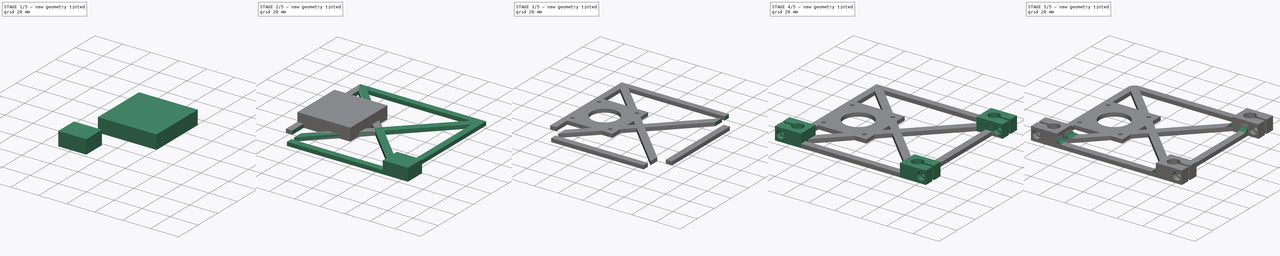
[diagram: build sequence overview — one tinted view per stage of 5, left to right]
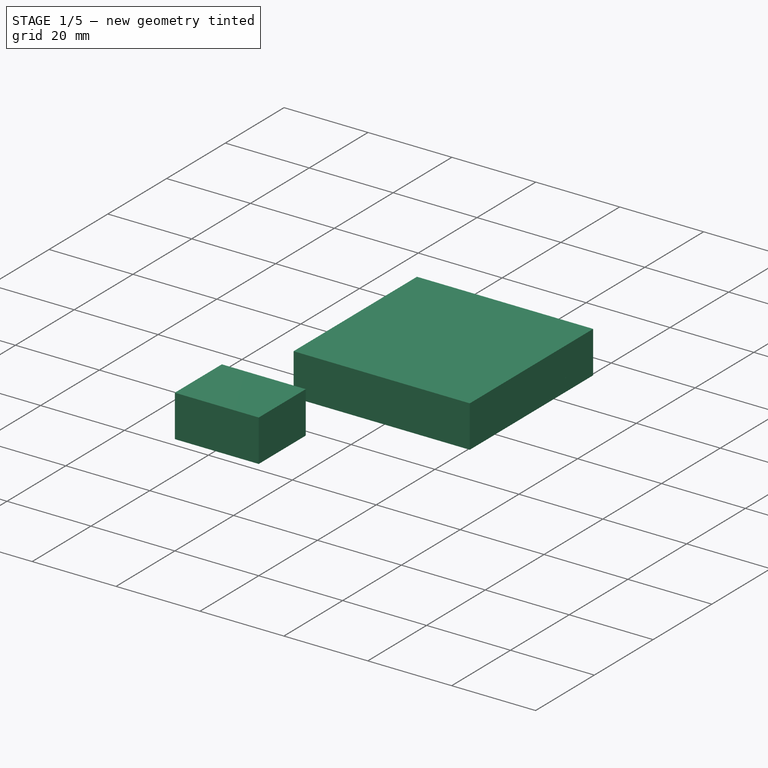
[diagram: stage 1 of 5 — iso view after this stage's code; geometry added in this stage tinted green]
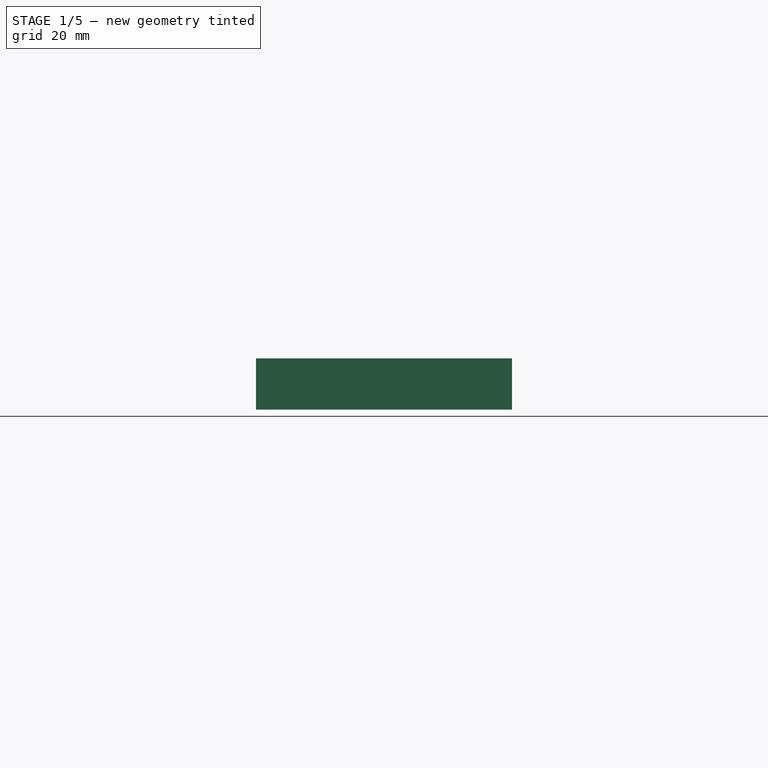
[diagram: stage 1 of 5 — front view after this stage's code; geometry added in this stage tinted green]
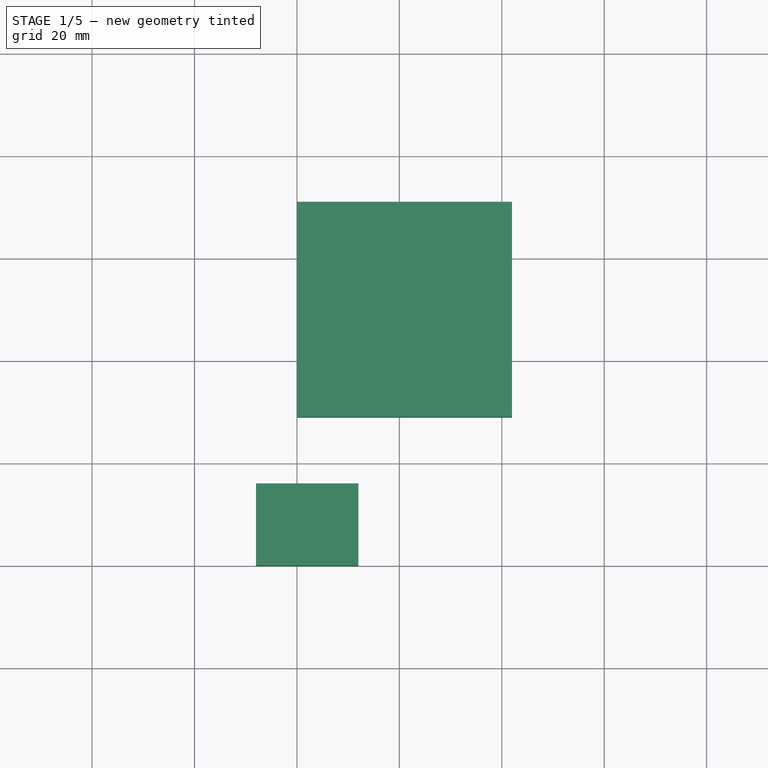
[diagram: stage 1 of 5 — top view after this stage's code; geometry added in this stage tinted green]
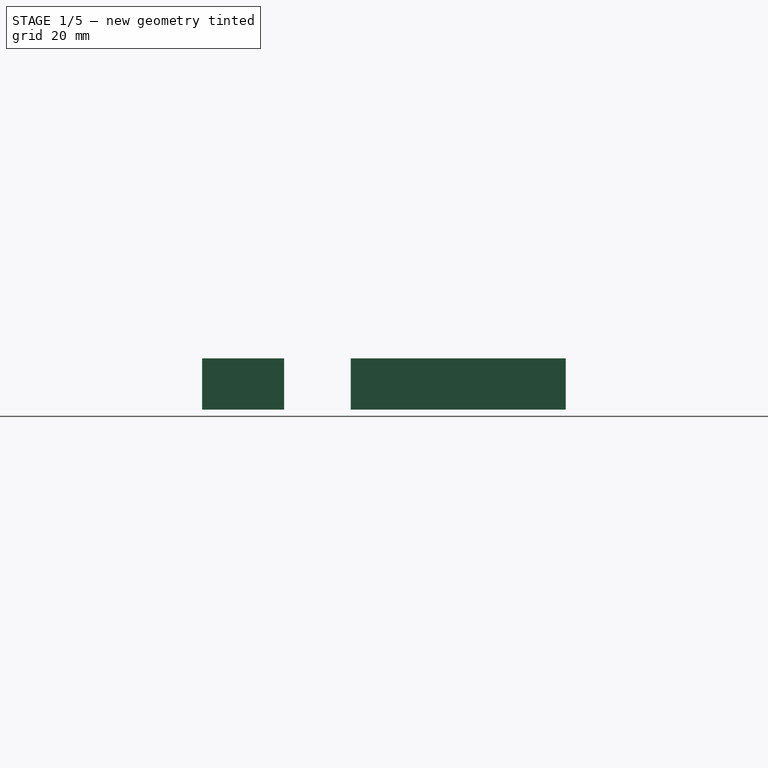
[diagram: stage 1 of 5 — right view after this stage's code; geometry added in this stage tinted green]
FCSTD DOCUMENT
Label: EndPlate3
objects: PartDesign::Pad×6, Sketcher::SketchObject×5, Part::Cut×4, PartDesign::Pocket×3, Part::Fillet×2, Part::MultiFuse×1
note: 27 computed .brp shape members not serialized (recipe doc carries the construction recipe); baked Part::Feature solids carry a one-line shape summary decoded from their .brp

FEATURE [Sketcher::SketchObject] Sketch001
  sketch-geometry (4):
    g0: LineSegment StartX=-8 StartY=0 StartZ=0 EndX=12 EndY=0 EndZ=0
    g1: LineSegment StartX=12 StartY=0 StartZ=0 EndX=12 EndY=16 EndZ=0
    g2: LineSegment StartX=12 StartY=16 StartZ=0 EndX=-8 EndY=16 EndZ=0
    g3: LineSegment StartX=-8 StartY=16 StartZ=0 EndX=-8 EndY=0 EndZ=0
  constraints (12):
    c: Coincident(g0,g1)
    c: Coincident(g1,g2)
    c: Coincident(g2,g3)
    c: Coincident(g3,g0)
    c: Horizontal(g0)
    c: Horizontal(g2)
    c: Vertical(g1)
    c: Vertical(g3)
    c: Distance(g2) = 20
    c: Distance(g1) = 16
    c: DistanceX(g0) = -8
    c: DistanceY(g0) = 0
FEATURE [PartDesign::Pad] Pad001
  Length = 10
  MirroredExtent = false
  Sketch = -> Sketch001
FEATURE [Sketcher::SketchObject] Sketch004
  sketch-geometry (5):
    g0: LineSegment StartX=0 StartY=71 StartZ=0 EndX=42 EndY=71 EndZ=0
    g1: LineSegment StartX=42 StartY=71 StartZ=0 EndX=42 EndY=29 EndZ=0
    g2: LineSegment StartX=0 StartY=29 StartZ=0 EndX=0 EndY=71 EndZ=0
    g3: LineSegment StartX=0 StartY=29 StartZ=0 EndX=21 EndY=29 EndZ=0
    g4: LineSegment StartX=21 StartY=29 StartZ=0 EndX=42 EndY=29 EndZ=0
  constraints (15):
    c: Coincident(g0,g1)
    c: Coincident(g2,g0)
    c: Horizontal(g0)
    c: Vertical(g1)
    c: Vertical(g2)
    c: Horizontal(g3)
    c: Coincident(g3,g4)
    c: Horizontal(g4)
    c: Equal(g4,g3)
    c: Coincident(g1,g4)
    c: Coincident(g3,g2)
    c: Equal(g0,g1)
    c: DistanceX(g0) = 42
    c: DistanceX(g3) = 21
    c: DistanceY(g3) = 29
FEATURE [PartDesign::Pad] Pad004
  Length = 10
  MirroredExtent = false
  Sketch = -> Sketch004
FEATURE [PartDesign::Pad] Pad005
  Length = 3
  MirroredExtent = false
  Placement = pos=(21,50,0) rot=(0,0,1;0rad)
  Sketch = -> Sketch
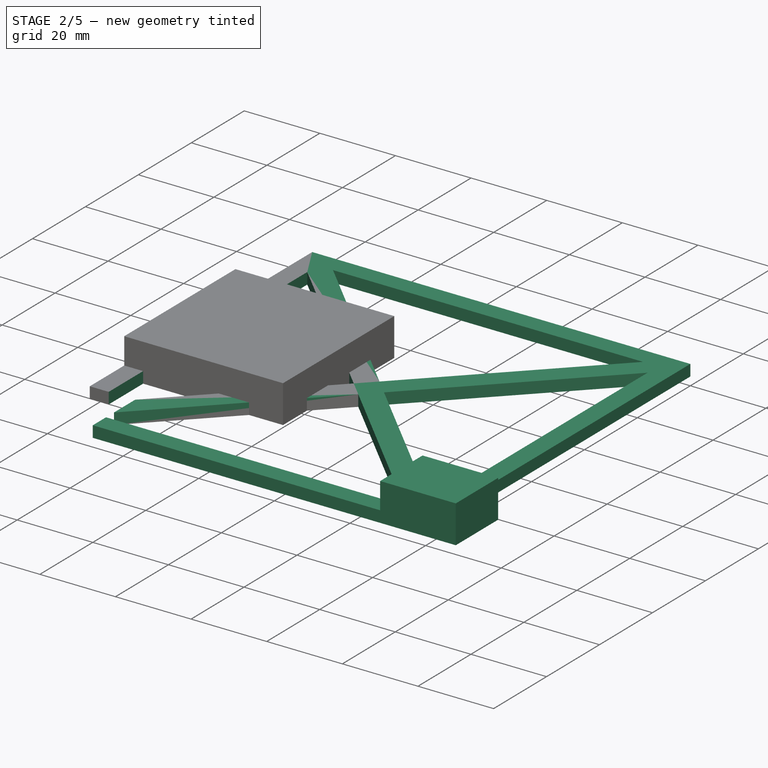
[diagram: stage 2 of 5 — iso view after this stage's code; geometry added in this stage tinted green]
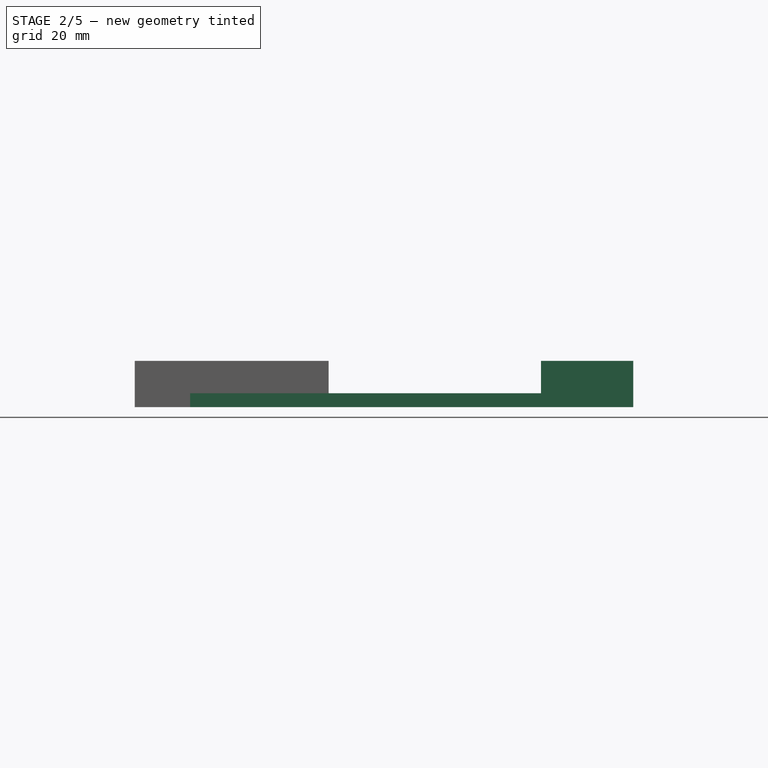
[diagram: stage 2 of 5 — front view after this stage's code; geometry added in this stage tinted green]
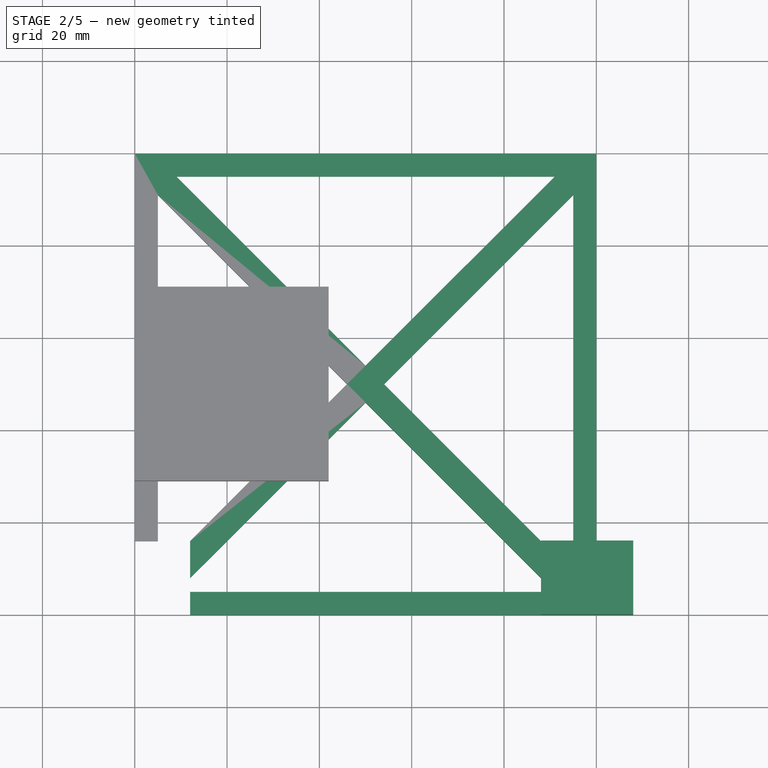
[diagram: stage 2 of 5 — top view after this stage's code; geometry added in this stage tinted green]
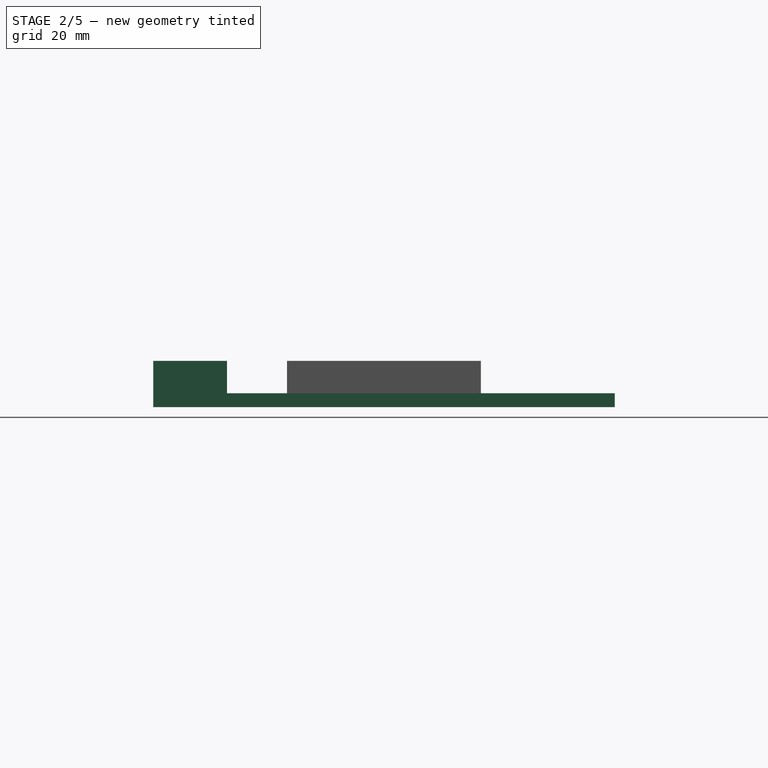
[diagram: stage 2 of 5 — right view after this stage's code; geometry added in this stage tinted green]
FEATURE [Sketcher::SketchObject] Sketch
  sketch-geometry (16):
    g0: LineSegment StartX=0 StartY=0 StartZ=0 EndX=0 EndY=100 EndZ=0
    g1: LineSegment StartX=0 StartY=100 StartZ=0 EndX=100 EndY=100 EndZ=0
    g2: LineSegment StartX=100 StartY=100 StartZ=0 EndX=100 EndY=0 EndZ=0
    g3: LineSegment StartX=100 StartY=0 StartZ=0 EndX=0 EndY=0 EndZ=0
    g4: LineSegment StartX=5 StartY=91 StartZ=0 EndX=46 EndY=50 EndZ=0
    g5: LineSegment StartX=46 StartY=50 StartZ=0 EndX=5 EndY=9 EndZ=0
    g6: LineSegment StartX=5 StartY=9 StartZ=0 EndX=5 EndY=91 EndZ=0
    g7: LineSegment StartX=9 StartY=95 StartZ=0 EndX=50 EndY=54 EndZ=0
    g8: LineSegment StartX=50 StartY=54 StartZ=0 EndX=91 EndY=95 EndZ=0
    g9: LineSegment StartX=91 StartY=95 StartZ=0 EndX=9 EndY=95 EndZ=0
    g10: LineSegment StartX=95 StartY=91 StartZ=0 EndX=95 EndY=9 EndZ=0
    g11: LineSegment StartX=95 StartY=9 StartZ=0 EndX=54 EndY=50 EndZ=0
    g12: LineSegment StartX=54 StartY=50 StartZ=0 EndX=95 EndY=91 EndZ=0
    g13: LineSegment StartX=91 StartY=5 StartZ=0 EndX=50 EndY=46 EndZ=0
    g14: LineSegment StartX=50 StartY=46 StartZ=0 EndX=9 EndY=5 EndZ=0
    g15: LineSegment StartX=9 StartY=5 StartZ=0 EndX=91 EndY=5 EndZ=0
  constraints (48):
    c: Vertical(g0)
    c: Coincident(g0,g1)
    c: Horizontal(g1)
    c: Coincident(g1,g2)
    c: Vertical(g2)
    c: Coincident(g2,g3)
    c: Horizontal(g3)
    c: Coincident(g3,g0)
    c: DistanceX(g0) = 0
    c: DistanceY(g0) = 0
    c: DistanceY(g0) = 100
    c: DistanceX(g3) = -100
    c: Coincident(g4,g5)
    c: Coincident(g5,g6)
    c: Vertical(g6)
    c: Coincident(g6,g4)
    c: Equal(g4,g5)
    c: DistanceX(g0,g5) = 5
    c: Coincident(g7,g8)
    c: Coincident(g8,g9)
    c: Coincident(g9,g7)
    c: Horizontal(g9)
    c: DistanceY(g7,g0) = 5
    c: Equal(g7,g8)
    c: Vertical(g10)
    c: Coincident(g10,g11)
    c: Coincident(g11,g12)
    c: Coincident(g12,g10)
    c: DistanceX(g10,g1) = 5
    c: Coincident(g13,g14)
    c: Coincident(g14,g15)
    c: Horizontal(g15)
    c: Equal(g12,g11)
    c: Equal(g14,g13)
    c: Coincident(g13,g15)
    c: DistanceY(g13,g2) = -5
    c: Equal(g6,g9)
    c: Equal(g9,g10)
    c: Equal(g10,g15)
    c: Equal(g8,g12)
    c: Equal(g11,g13)
    c: Equal(g7,g4)
    c: Parallel(g13,g11)
    c: DistanceY(g4) = 50
    c: DistanceY(g11) = 50
    c: DistanceX(g7) = 50
    c: DistanceX(g13) = 50
    c: Distance(g6) = 82
FEATURE [PartDesign::Pad] Pad
  Length = 3
  MirroredExtent = false
  Sketch = -> Sketch
FEATURE [Sketcher::SketchObject] Sketch002
  sketch-geometry (4):
    g0: LineSegment StartX=88 StartY=0 StartZ=0 EndX=108 EndY=0 EndZ=0
    g1: LineSegment StartX=108 StartY=0 StartZ=0 EndX=108 EndY=16 EndZ=0
    g2: LineSegment StartX=108 StartY=16 StartZ=0 EndX=88 EndY=16 EndZ=0
    g3: LineSegment StartX=88 StartY=16 StartZ=0 EndX=88 EndY=0 EndZ=0
  constraints (12):
    c: Coincident(g0,g1)
    c: Coincident(g1,g2)
    c: Coincident(g2,g3)
    c: Coincident(g3,g0)
    c: Horizontal(g0)
    c: Horizontal(g2)
    c: Vertical(g1)
    c: Vertical(g3)
    c: Distance(g1) = 16
    c: Distance(g0) = 20
    c: DistanceX(g0) = 108
    c: DistanceY(g0) = 0
FEATURE [PartDesign::Pad] Pad002
  Length = 10
  MirroredExtent = false
  Sketch = -> Sketch002
FEATURE [Part::Cut] Cut
  Base = -> Pad
  Tool = -> Pad001
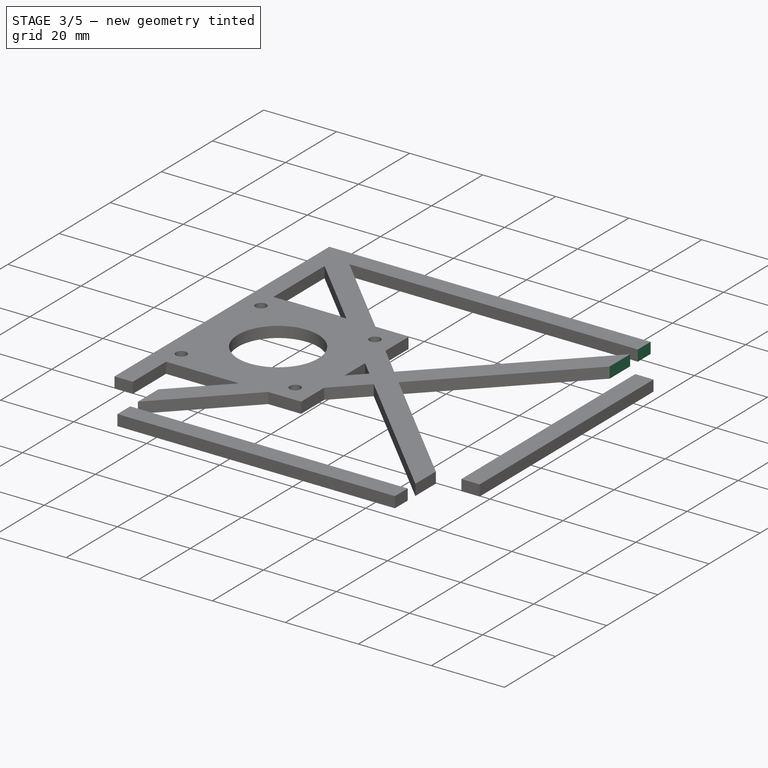
[diagram: stage 3 of 5 — iso view after this stage's code; geometry added in this stage tinted green]
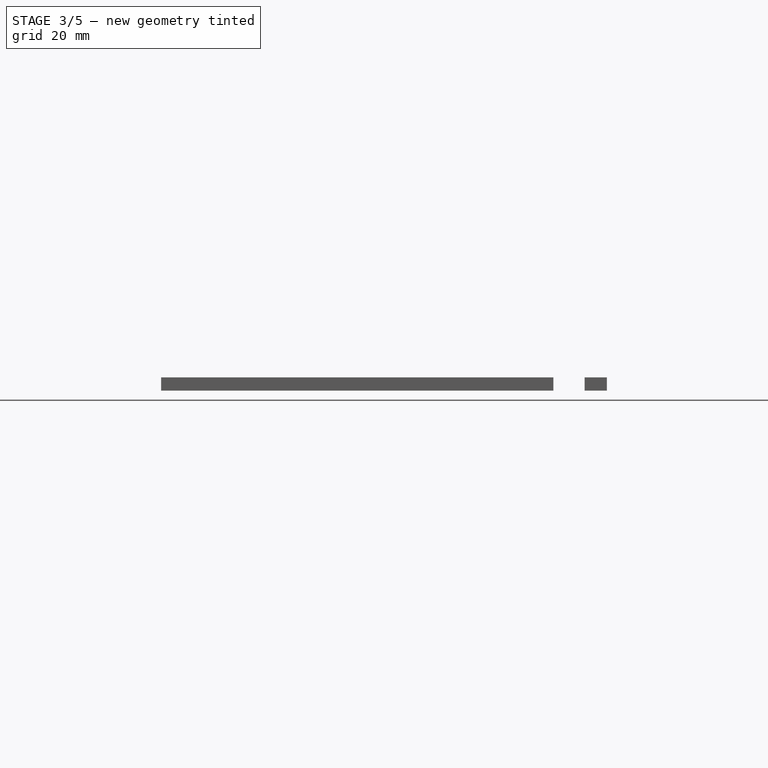
[diagram: stage 3 of 5 — front view after this stage's code; geometry added in this stage tinted green]
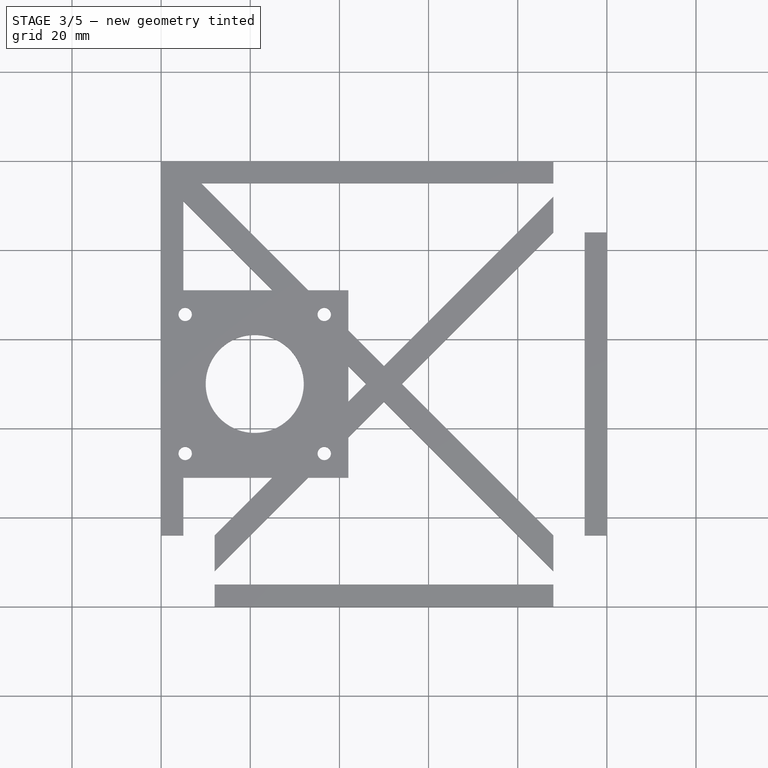
[diagram: stage 3 of 5 — top view after this stage's code; geometry added in this stage tinted green]
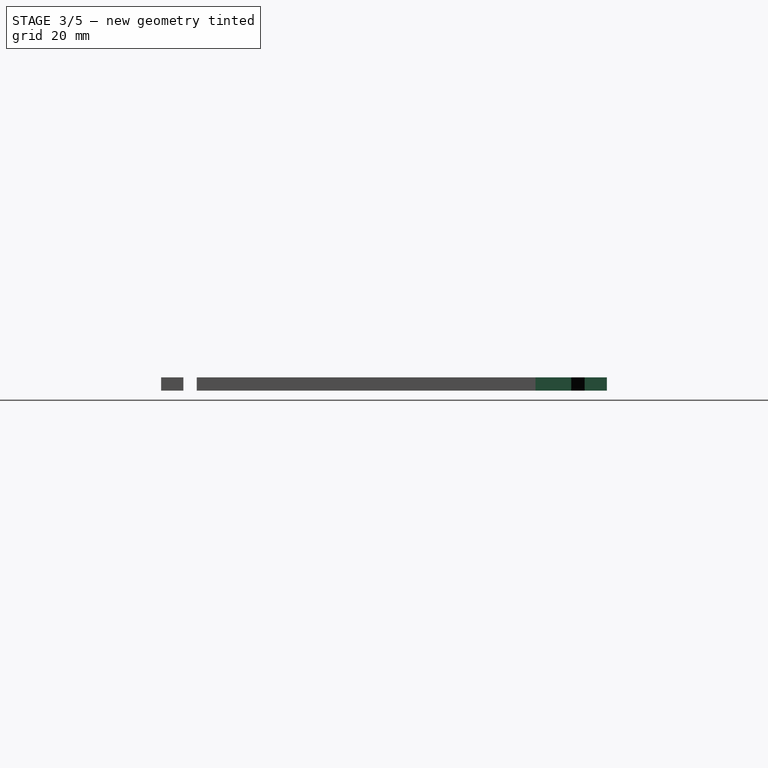
[diagram: stage 3 of 5 — right view after this stage's code; geometry added in this stage tinted green]
FEATURE [Sketcher::SketchObject] Sketch003
  sketch-geometry (4):
    g0: LineSegment StartX=88 StartY=100 StartZ=0 EndX=108 EndY=100 EndZ=0
    g1: LineSegment StartX=108 StartY=100 StartZ=0 EndX=108 EndY=84 EndZ=0
    g2: LineSegment StartX=108 StartY=84 StartZ=0 EndX=88 EndY=84 EndZ=0
    g3: LineSegment StartX=88 StartY=84 StartZ=0 EndX=88 EndY=100 EndZ=0
  constraints (12):
    c: Coincident(g0,g1)
    c: Coincident(g1,g2)
    c: Coincident(g2,g3)
    c: Coincident(g3,g0)
    c: Horizontal(g0)
    c: Horizontal(g2)
    c: Vertical(g1)
    c: Vertical(g3)
    c: Distance(g0) = 20
    c: Distance(g1) = 16
    c: DistanceX(g0) = 108
    c: DistanceY(g0) = 100
FEATURE [PartDesign::Pad] Pad003
  Length = 10
  MirroredExtent = false
  Sketch = -> Sketch003
FEATURE [Part::Cut] Cut001
  Base = -> Cut
  Tool = -> Pad002
FEATURE [Part::Cut] Cut002
  Base = -> Cut001
  Tool = -> Pad003
FEATURE [Part::Cut] Cut003
  Base = -> Cut002
  Tool = -> Pad004
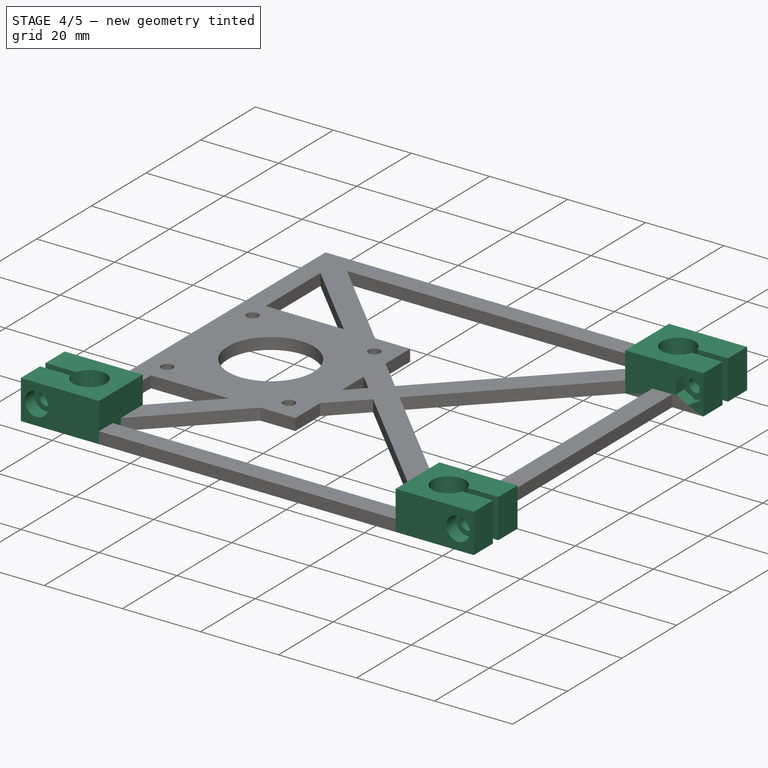
[diagram: stage 4 of 5 — iso view after this stage's code; geometry added in this stage tinted green]
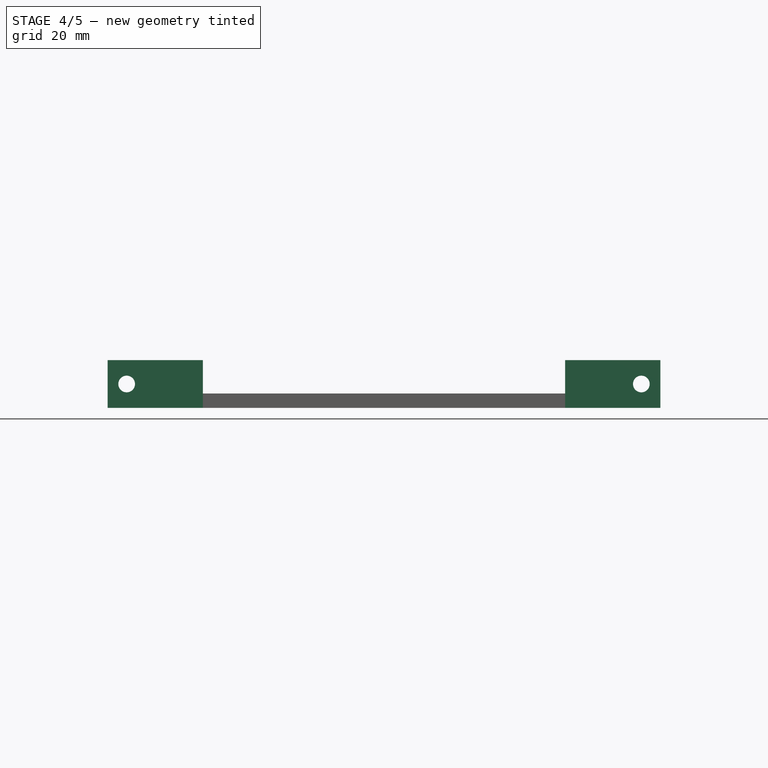
[diagram: stage 4 of 5 — front view after this stage's code; geometry added in this stage tinted green]
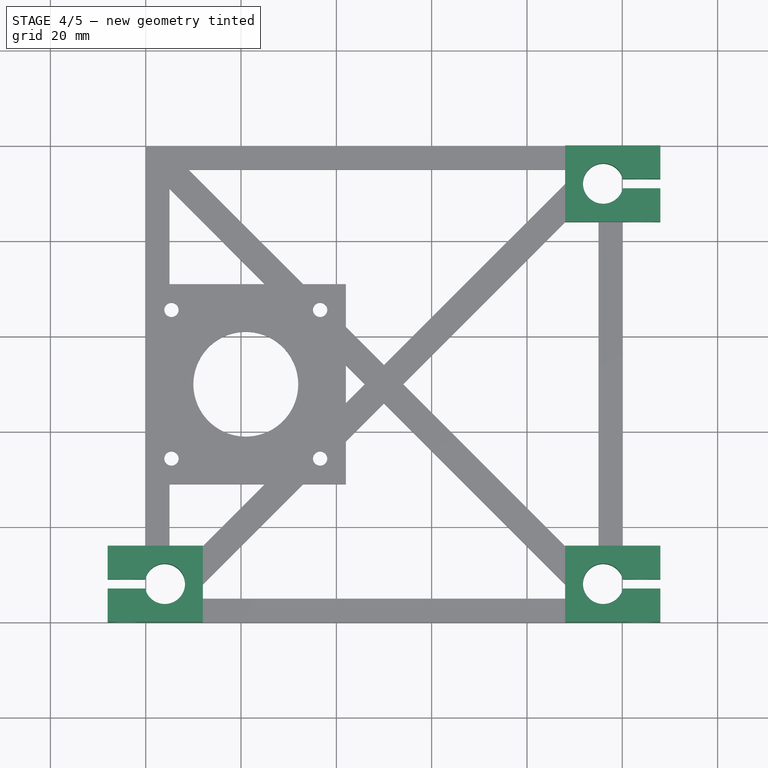
[diagram: stage 4 of 5 — top view after this stage's code; geometry added in this stage tinted green]
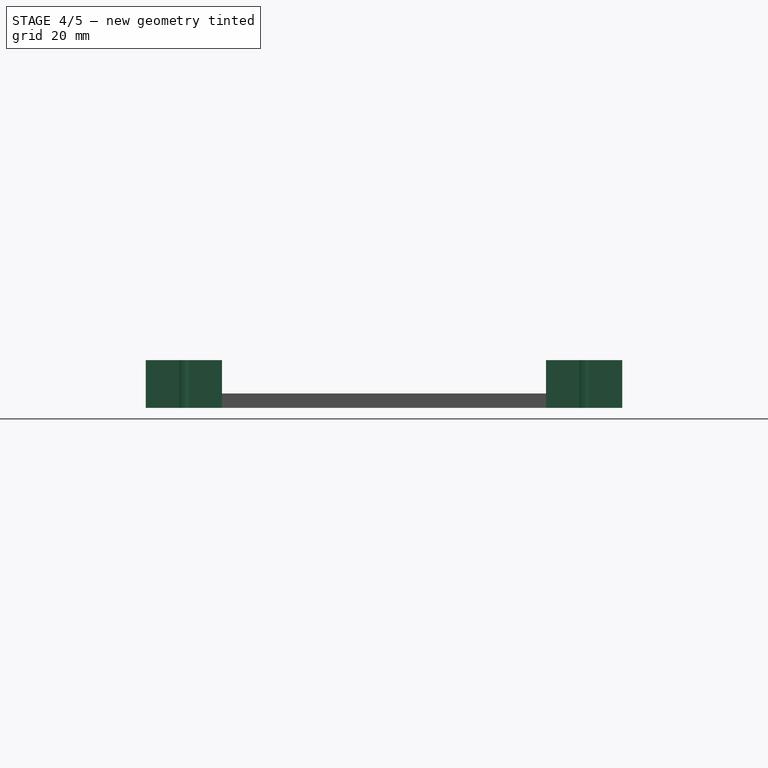
[diagram: stage 4 of 5 — right view after this stage's code; geometry added in this stage tinted green]
FEATURE [PartDesign::Pocket] Pocket  label="Clamp1"
  Length = 3
  Placement = pos=(12,16,0) rot=(0,0,1;3.14159rad)
  Sketch = -> Sketch003
  Type = 0
FEATURE [PartDesign::Pocket] Pocket001  label="Clamp2"
  Length = 3
  Placement = pos=(88,84,0) rot=(0,0,1;0rad)
  Sketch = -> Sketch003
  Type = 0
FEATURE [PartDesign::Pocket] Pocket002  label="Clamp3"
  Length = 3
  Placement = pos=(88,16,10) rot=(1,0,0;3.14159rad)
  Sketch = -> Sketch003
  Type = 0
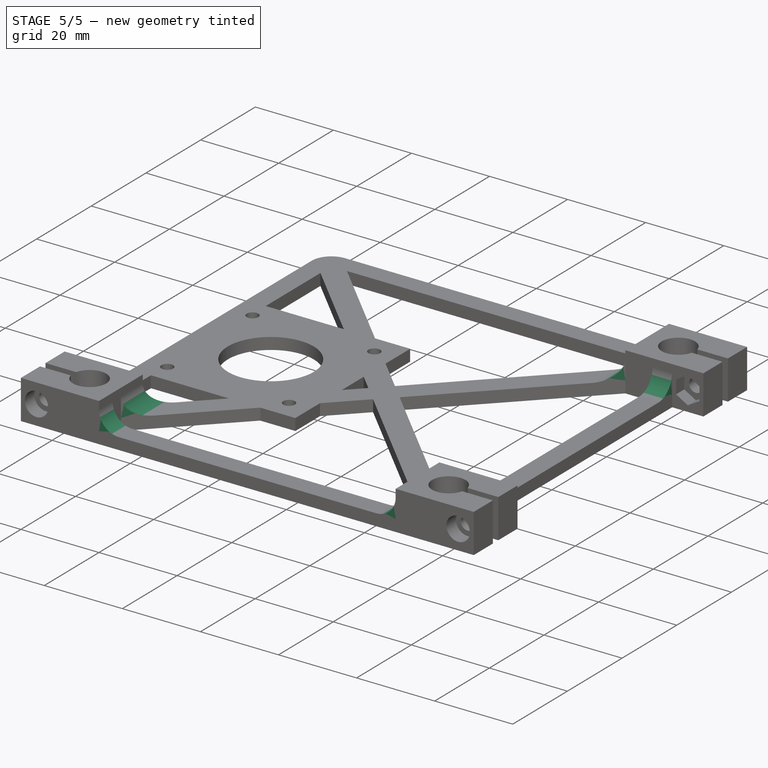
[diagram: stage 5 of 5 — iso view after this stage's code; geometry added in this stage tinted green]
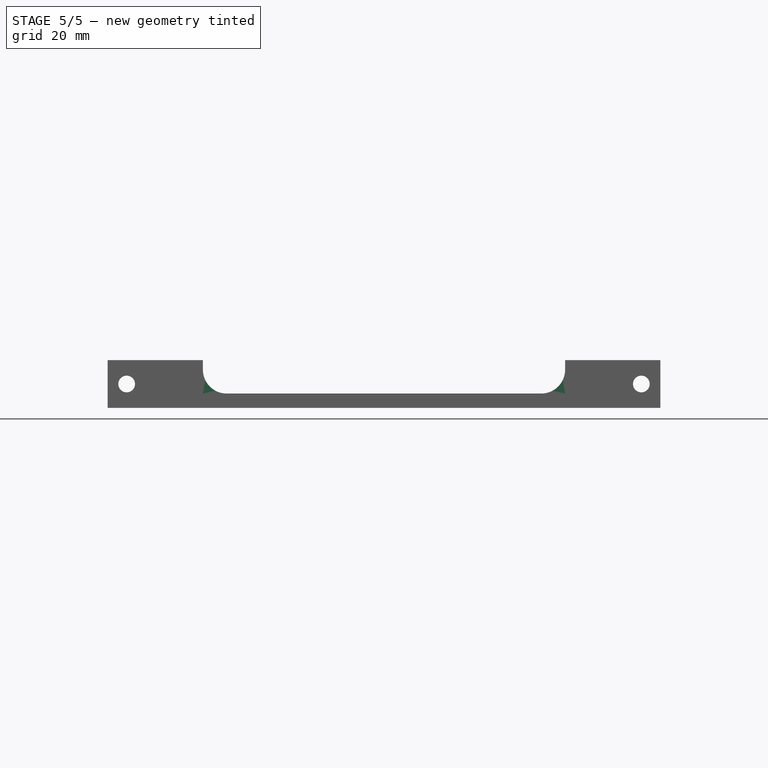
[diagram: stage 5 of 5 — front view after this stage's code; geometry added in this stage tinted green]
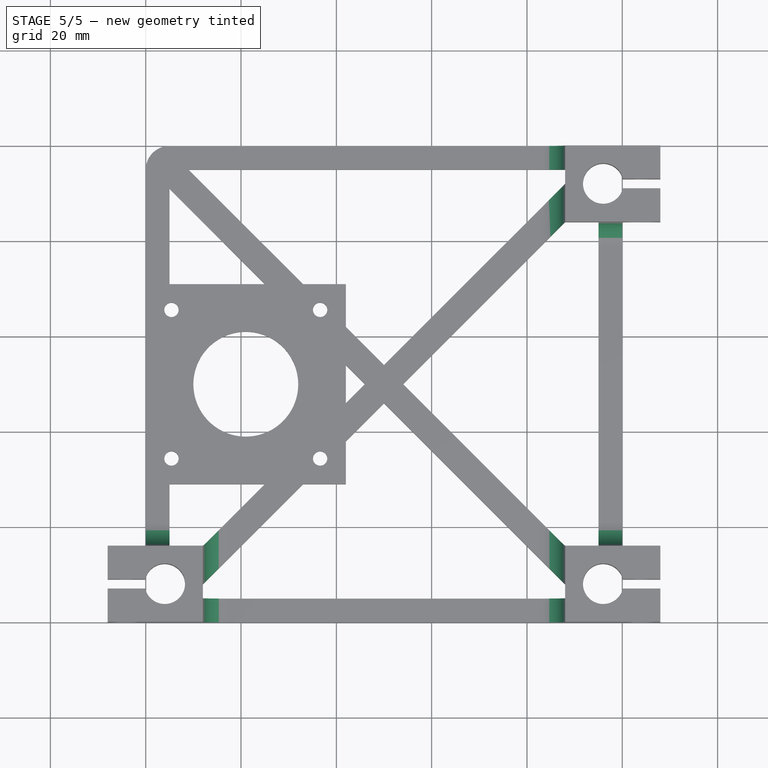
[diagram: stage 5 of 5 — top view after this stage's code; geometry added in this stage tinted green]
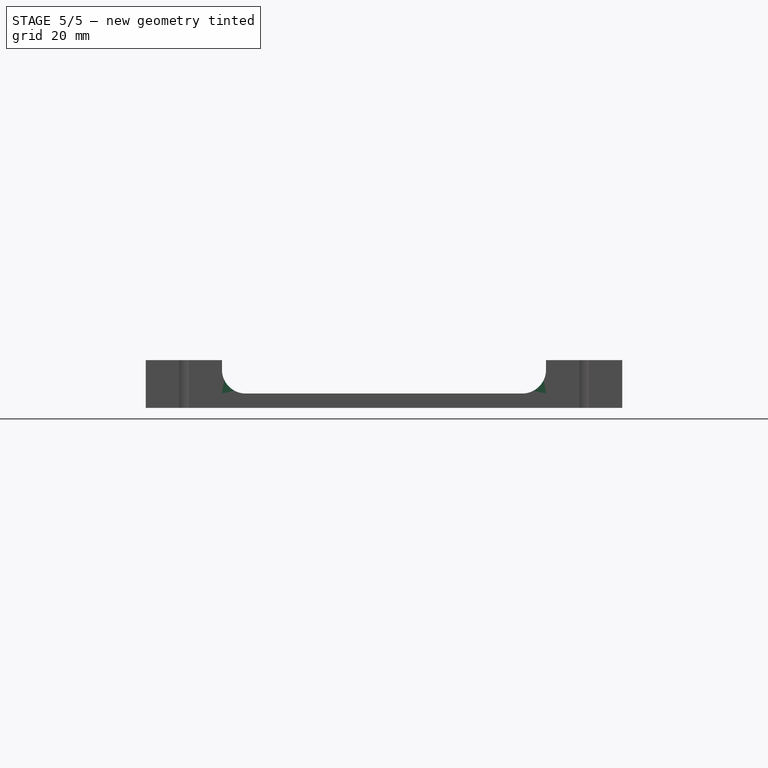
[diagram: stage 5 of 5 — right view after this stage's code; geometry added in this stage tinted green]
FEATURE [Part::MultiFuse] Fusion
  Shapes = -> [Pocket,Pocket001,Pad005,Cut003,Pocket002]
FEATURE [Part::Fillet] Fillet
  Base = -> Fusion
  Edges = 9 edges r=5: [Edge9,Edge13,Edge35,Edge59,Edge117,Edge131,Edge145,Edge195,Edge254]
FEATURE [Part::Fillet] Fillet001
  Base = -> Fillet
  Edges = 1 edges r=5: [Edge252]
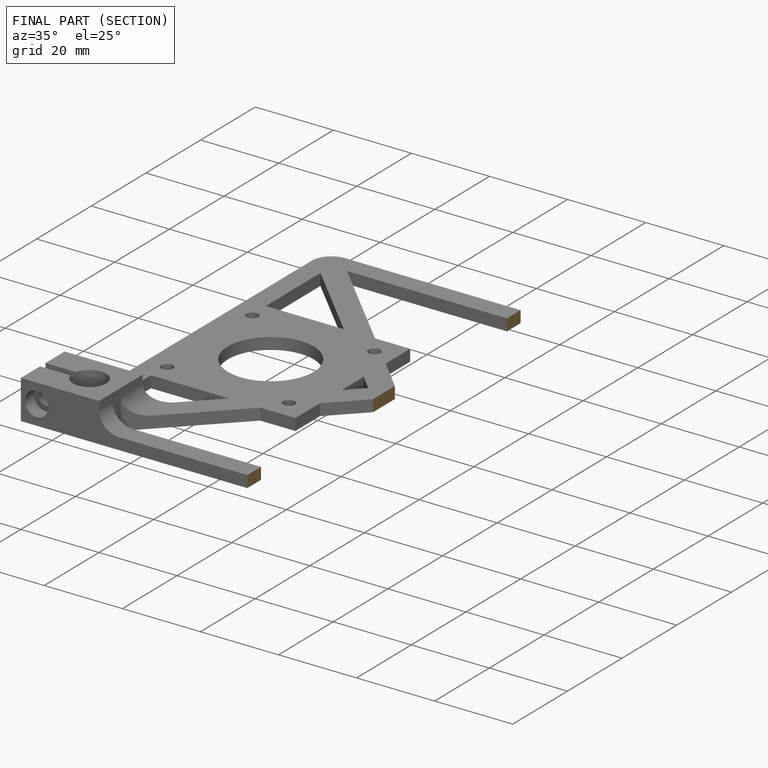
[diagram: finished part — half-section view (interior)]
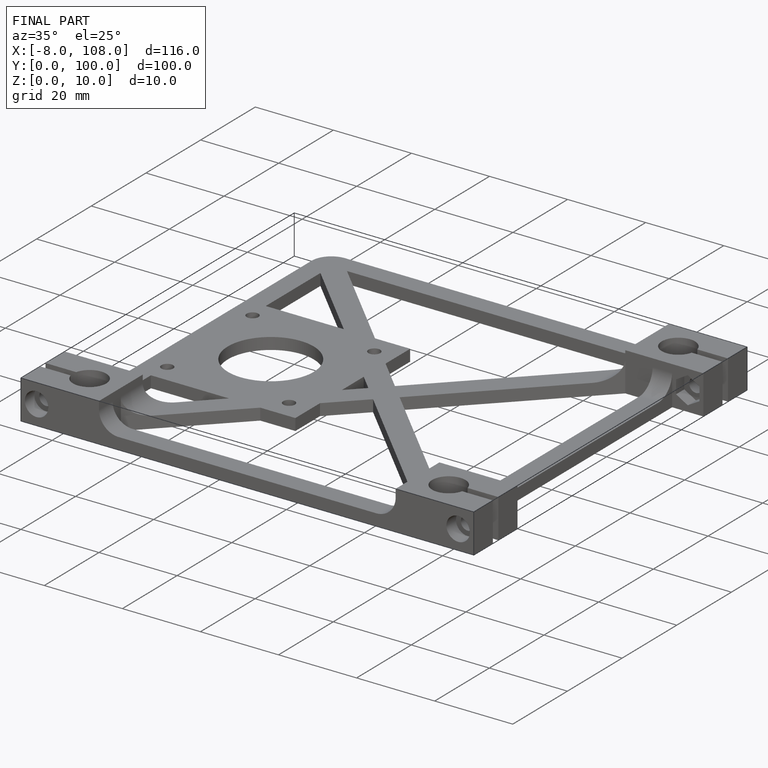
[diagram: finished part — iso view with bounding-box wireframe]
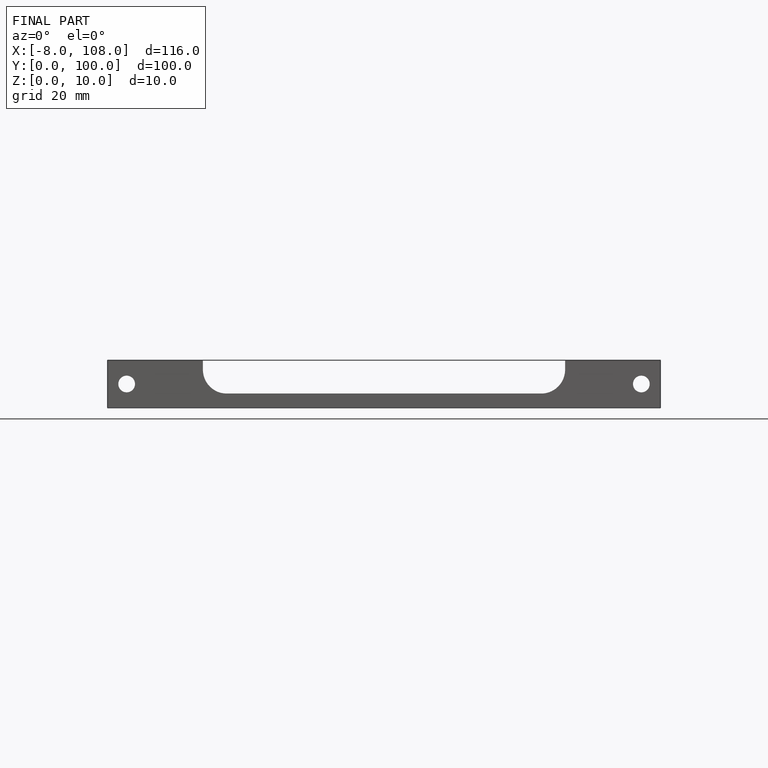
[diagram: finished part — front view with bounding-box wireframe]
